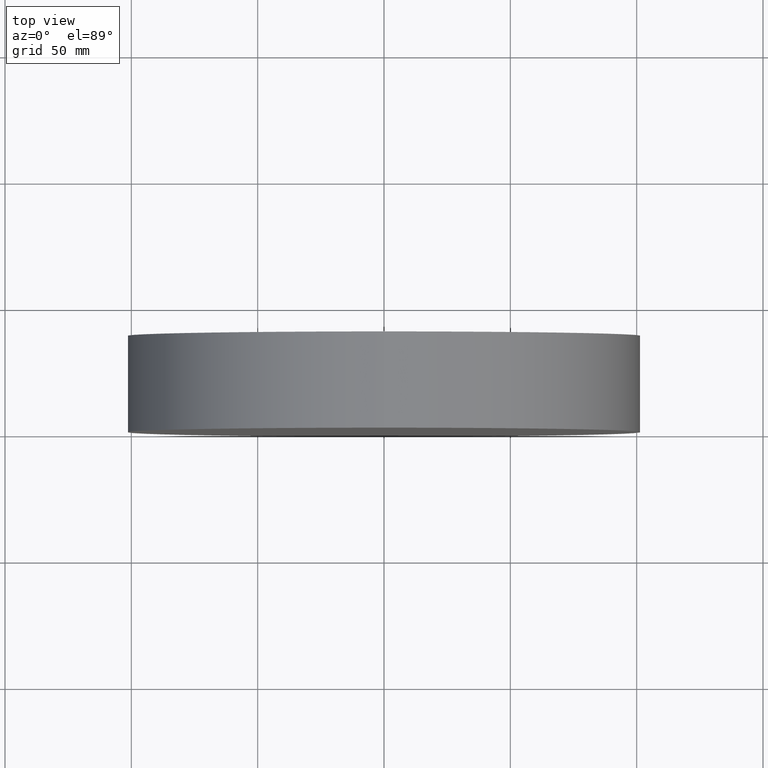
[diagram: clean part render]
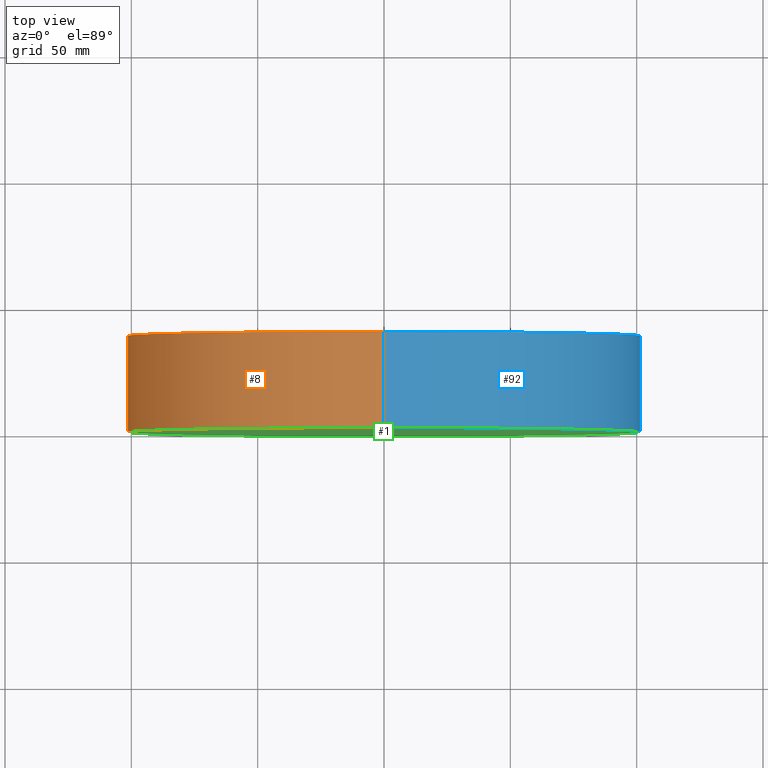
[diagram: same view with three faces highlighted in distinct colors, each labeled with its STEP entity id]
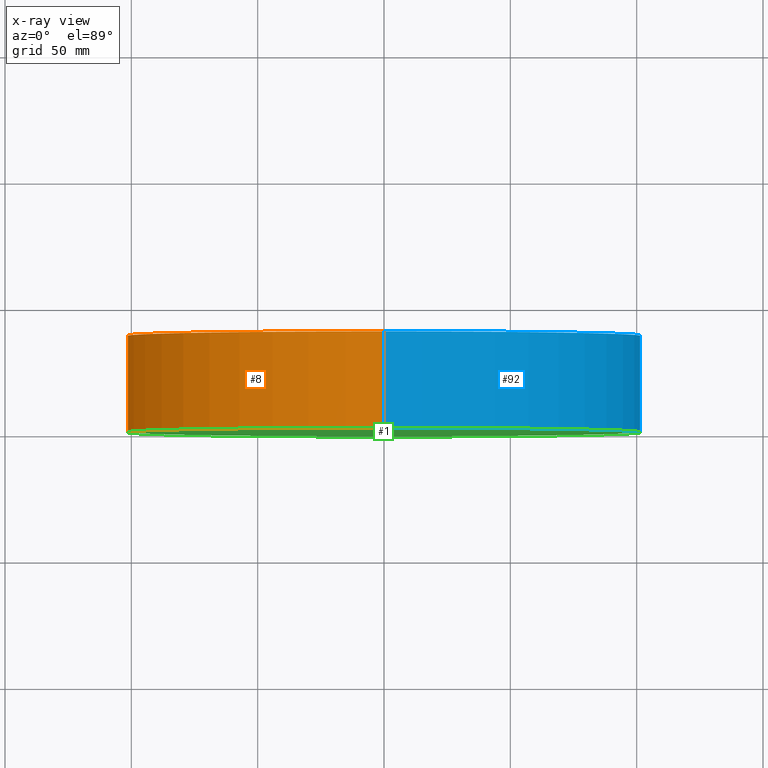
[diagram: x-ray of the same camera — body ghosted, the three highlighted faces saturated]
A machine part, top view with three faces highlighted in distinct colors.
The next image is the same camera in x-ray (body ghosted, the three faces saturated) — at least one of them is partly hidden behind the body in this view.
Their STEP definitions:

[orange] entity #8 — the highlighted cylindrical surface (partial cylindrical patch) has radius 101.6 mm, axis along (-0, -1, -0).
#3 = CIRCLE ( 'NONE', #84, 101.5999999999999900 ) ;
#4 = DIRECTION ( 'NONE',  ( 0.0000000000000000000, 0.0000000000000000000, 1.000000000000000000 ) ) ;
#5 = CARTESIAN_POINT ( 'NONE',  ( 0.0000000000000000000, 0.0000000000000000000, -101.5999999999999900 ) ) ;
#7 = VERTEX_POINT ( 'NONE', #127 ) ;
#8 = ADVANCED_FACE ( 'NONE', ( #10 ), #24, .T. ) ;
#10 = FACE_OUTER_BOUND ( 'NONE', #75, .T. ) ;
#15 = CIRCLE ( 'NONE', #46, 101.5999999999999900 ) ;
#17 = EDGE_CURVE ( 'NONE', #70, #45, #15, .T. ) ;
#23 = EDGE_CURVE ( 'NONE', #7, #45, #109, .T. ) ;
#24 = CYLINDRICAL_SURFACE ( 'NONE', #91, 101.5999999999999900 ) ;
#26 = DIRECTION ( 'NONE',  ( -0.0000000000000000000, -1.000000000000000000, -0.0000000000000000000 ) ) ;
#33 = DIRECTION ( 'NONE',  ( 0.0000000000000000000, 0.0000000000000000000, -1.000000000000000000 ) ) ;
#35 = DIRECTION ( 'NONE',  ( 0.0000000000000000000, 1.000000000000000000, 0.0000000000000000000 ) ) ;
#42 = VECTOR ( 'NONE', #26, 1000.000000000000000 ) ;
#43 = CARTESIAN_POINT ( 'NONE',  ( 0.0000000000000000000, 38.10000000000000100, -101.5999999999999900 ) ) ;
#45 = VERTEX_POINT ( 'NONE', #130 ) ;
#46 = AXIS2_PLACEMENT_3D ( 'NONE', #125, #35, #4 ) ;
#51 = ORIENTED_EDGE ( 'NONE', *, *, #94, .F. ) ;
#61 = ORIENTED_EDGE ( 'NONE', *, *, #73, .T. ) ;
#63 = ORIENTED_EDGE ( 'NONE', *, *, #17, .T. ) ;
#68 = DIRECTION ( 'NONE',  ( 0.0000000000000000000, 0.0000000000000000000, 1.000000000000000000 ) ) ;
#69 = CARTESIAN_POINT ( 'NONE',  ( 0.0000000000000000000, 38.10000000000000100, -101.5999999999999900 ) ) ;
#70 = VERTEX_POINT ( 'NONE', #5 ) ;
#73 = EDGE_CURVE ( 'NONE', #131, #70, #134, .T. ) ;
#75 = EDGE_LOOP ( 'NONE', ( #99, #51, #61, #63 ) ) ;
#77 = CARTESIAN_POINT ( 'NONE',  ( 1.244241147933710400E-014, 38.10000000000000100, 101.5999999999999900 ) ) ;
#84 = AXIS2_PLACEMENT_3D ( 'NONE', #88, #128, #68 ) ;
#88 = CARTESIAN_POINT ( 'NONE',  ( 0.0000000000000000000, 38.10000000000000100, 0.0000000000000000000 ) ) ;
#89 = DIRECTION ( 'NONE',  ( -0.0000000000000000000, -1.000000000000000000, -0.0000000000000000000 ) ) ;
#91 = AXIS2_PLACEMENT_3D ( 'NONE', #116, #126, #33 ) ;
#94 = EDGE_CURVE ( 'NONE', #131, #7, #3, .T. ) ;
#99 = ORIENTED_EDGE ( 'NONE', *, *, #23, .F. ) ;
#101 = VECTOR ( 'NONE', #89, 1000.000000000000000 ) ;
#109 = LINE ( 'NONE', #77, #42 ) ;
#116 = CARTESIAN_POINT ( 'NONE',  ( 0.0000000000000000000, 38.10000000000000100, 0.0000000000000000000 ) ) ;
#125 = CARTESIAN_POINT ( 'NONE',  ( 0.0000000000000000000, 0.0000000000000000000, 0.0000000000000000000 ) ) ;
#126 = DIRECTION ( 'NONE',  ( -0.0000000000000000000, -1.000000000000000000, -0.0000000000000000000 ) ) ;
#127 = CARTESIAN_POINT ( 'NONE',  ( 1.244241147933710400E-014, 38.10000000000000100, 101.5999999999999900 ) ) ;
#128 = DIRECTION ( 'NONE',  ( 0.0000000000000000000, 1.000000000000000000, 0.0000000000000000000 ) ) ;
#130 = CARTESIAN_POINT ( 'NONE',  ( 1.244241147933710400E-014, 0.0000000000000000000, 101.5999999999999900 ) ) ;
#131 = VERTEX_POINT ( 'NONE', #43 ) ;
#134 = LINE ( 'NONE', #69, #101 ) ;

[blue] entity #92 — the highlighted cylindrical surface (partial cylindrical patch) has radius 101.6 mm, axis along (-0, -1, -0).
#2 = ORIENTED_EDGE ( 'NONE', *, *, #83, .T. ) ;
#5 = CARTESIAN_POINT ( 'NONE',  ( 0.0000000000000000000, 0.0000000000000000000, -101.5999999999999900 ) ) ;
#7 = VERTEX_POINT ( 'NONE', #127 ) ;
#20 = AXIS2_PLACEMENT_3D ( 'NONE', #114, #44, #111 ) ;
#23 = EDGE_CURVE ( 'NONE', #7, #45, #109, .T. ) ;
#25 = DIRECTION ( 'NONE',  ( 0.0000000000000000000, 0.0000000000000000000, 1.000000000000000000 ) ) ;
#26 = DIRECTION ( 'NONE',  ( -0.0000000000000000000, -1.000000000000000000, -0.0000000000000000000 ) ) ;
#34 = DIRECTION ( 'NONE',  ( 0.0000000000000000000, 1.000000000000000000, 0.0000000000000000000 ) ) ;
#42 = VECTOR ( 'NONE', #26, 1000.000000000000000 ) ;
#43 = CARTESIAN_POINT ( 'NONE',  ( 0.0000000000000000000, 38.10000000000000100, -101.5999999999999900 ) ) ;
#44 = DIRECTION ( 'NONE',  ( 0.0000000000000000000, 1.000000000000000000, 0.0000000000000000000 ) ) ;
#45 = VERTEX_POINT ( 'NONE', #130 ) ;
#50 = CYLINDRICAL_SURFACE ( 'NONE', #96, 101.5999999999999900 ) ;
#60 = AXIS2_PLACEMENT_3D ( 'NONE', #100, #34, #25 ) ;
#64 = EDGE_CURVE ( 'NONE', #7, #131, #140, .T. ) ;
#69 = CARTESIAN_POINT ( 'NONE',  ( 0.0000000000000000000, 38.10000000000000100, -101.5999999999999900 ) ) ;
#70 = VERTEX_POINT ( 'NONE', #5 ) ;
#73 = EDGE_CURVE ( 'NONE', #131, #70, #134, .T. ) ;
#77 = CARTESIAN_POINT ( 'NONE',  ( 1.244241147933710400E-014, 38.10000000000000100, 101.5999999999999900 ) ) ;
#82 = CIRCLE ( 'NONE', #20, 101.5999999999999900 ) ;
#83 = EDGE_CURVE ( 'NONE', #45, #70, #82, .T. ) ;
#85 = ORIENTED_EDGE ( 'NONE', *, *, #23, .T. ) ;
#87 = CARTESIAN_POINT ( 'NONE',  ( 0.0000000000000000000, 38.10000000000000100, 0.0000000000000000000 ) ) ;
#89 = DIRECTION ( 'NONE',  ( -0.0000000000000000000, -1.000000000000000000, -0.0000000000000000000 ) ) ;
#92 = ADVANCED_FACE ( 'NONE', ( #105 ), #50, .T. ) ;
#96 = AXIS2_PLACEMENT_3D ( 'NONE', #87, #139, #113 ) ;
#100 = CARTESIAN_POINT ( 'NONE',  ( 0.0000000000000000000, 38.10000000000000100, 0.0000000000000000000 ) ) ;
#101 = VECTOR ( 'NONE', #89, 1000.000000000000000 ) ;
#103 = ORIENTED_EDGE ( 'NONE', *, *, #64, .F. ) ;
#105 = FACE_OUTER_BOUND ( 'NONE', #124, .T. ) ;
#107 = ORIENTED_EDGE ( 'NONE', *, *, #73, .F. ) ;
#109 = LINE ( 'NONE', #77, #42 ) ;
#111 = DIRECTION ( 'NONE',  ( 0.0000000000000000000, 0.0000000000000000000, 1.000000000000000000 ) ) ;
#113 = DIRECTION ( 'NONE',  ( 0.0000000000000000000, 0.0000000000000000000, -1.000000000000000000 ) ) ;
#114 = CARTESIAN_POINT ( 'NONE',  ( 0.0000000000000000000, 0.0000000000000000000, 0.0000000000000000000 ) ) ;
#124 = EDGE_LOOP ( 'NONE', ( #103, #85, #2, #107 ) ) ;
#127 = CARTESIAN_POINT ( 'NONE',  ( 1.244241147933710400E-014, 38.10000000000000100, 101.5999999999999900 ) ) ;
#130 = CARTESIAN_POINT ( 'NONE',  ( 1.244241147933710400E-014, 0.0000000000000000000, 101.5999999999999900 ) ) ;
#131 = VERTEX_POINT ( 'NONE', #43 ) ;
#134 = LINE ( 'NONE', #69, #101 ) ;
#139 = DIRECTION ( 'NONE',  ( -0.0000000000000000000, -1.000000000000000000, -0.0000000000000000000 ) ) ;
#140 = CIRCLE ( 'NONE', #60, 101.5999999999999900 ) ;

[green] entity #1 — the highlighted planar face has unit normal (0, 1, 0).
#1 = ADVANCED_FACE ( 'NONE', ( #117 ), #29, .F. ) ;
#4 = DIRECTION ( 'NONE',  ( 0.0000000000000000000, 0.0000000000000000000, 1.000000000000000000 ) ) ;
#5 = CARTESIAN_POINT ( 'NONE',  ( 0.0000000000000000000, 0.0000000000000000000, -101.5999999999999900 ) ) ;
#9 = ORIENTED_EDGE ( 'NONE', *, *, #17, .F. ) ;
#15 = CIRCLE ( 'NONE', #46, 101.5999999999999900 ) ;
#17 = EDGE_CURVE ( 'NONE', #70, #45, #15, .T. ) ;
#18 = ORIENTED_EDGE ( 'NONE', *, *, #83, .F. ) ;
#20 = AXIS2_PLACEMENT_3D ( 'NONE', #114, #44, #111 ) ;
#29 = PLANE ( 'NONE',  #104 ) ;
#35 = DIRECTION ( 'NONE',  ( 0.0000000000000000000, 1.000000000000000000, 0.0000000000000000000 ) ) ;
#44 = DIRECTION ( 'NONE',  ( 0.0000000000000000000, 1.000000000000000000, 0.0000000000000000000 ) ) ;
#45 = VERTEX_POINT ( 'NONE', #130 ) ;
#46 = AXIS2_PLACEMENT_3D ( 'NONE', #125, #35, #4 ) ;
#70 = VERTEX_POINT ( 'NONE', #5 ) ;
#76 = CARTESIAN_POINT ( 'NONE',  ( 0.0000000000000000000, 0.0000000000000000000, 0.0000000000000000000 ) ) ;
#80 = EDGE_LOOP ( 'NONE', ( #9, #18 ) ) ;
#81 = DIRECTION ( 'NONE',  ( 0.0000000000000000000, 1.000000000000000000, 0.0000000000000000000 ) ) ;
#82 = CIRCLE ( 'NONE', #20, 101.5999999999999900 ) ;
#83 = EDGE_CURVE ( 'NONE', #45, #70, #82, .T. ) ;
#104 = AXIS2_PLACEMENT_3D ( 'NONE', #76, #81, #136 ) ;
#111 = DIRECTION ( 'NONE',  ( 0.0000000000000000000, 0.0000000000000000000, 1.000000000000000000 ) ) ;
#114 = CARTESIAN_POINT ( 'NONE',  ( 0.0000000000000000000, 0.0000000000000000000, 0.0000000000000000000 ) ) ;
#117 = FACE_OUTER_BOUND ( 'NONE', #80, .T. ) ;
#125 = CARTESIAN_POINT ( 'NONE',  ( 0.0000000000000000000, 0.0000000000000000000, 0.0000000000000000000 ) ) ;
#130 = CARTESIAN_POINT ( 'NONE',  ( 1.244241147933710400E-014, 0.0000000000000000000, 101.5999999999999900 ) ) ;
#136 = DIRECTION ( 'NONE',  ( 0.0000000000000000000, -0.0000000000000000000, 1.000000000000000000 ) ) ;